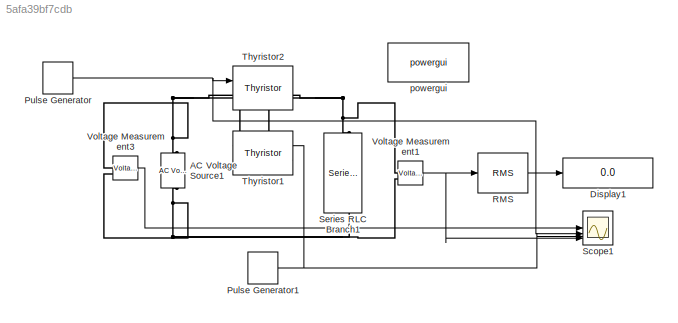
MODEL slx_5afa39bf7cdb
KIND model
CONFIG AbsTol = auto
CONFIG EnableMultiTasking = off
CONFIG FixedStep = auto
CONFIG MaxStep = 1e-4
CONFIG MinStep = auto
CONFIG RelTol = 1e-3
CONFIG SampleTimeConstraint = Unconstrained
CONFIG SolverName = VariableStepAuto
CONFIG StartTime = 0.0
CONFIG StopTime = 10.0
BLOCK [Reference] AC Voltage Source1  REF=spsACVoltageSourceLib/AC Voltage Source
  LibrarySourceBlock = sps_lib/Sources/AC Voltage Source
  SourceBlock = spsACVoltageSourceLib/AC Voltage Source
  SourceType = AC Voltage Source
BLOCK [Display] Display1
  Decimation = 1
BLOCK [DiscretePulseGenerator] Pulse Generator
  Period = 1/50
  PhaseDelay = alpha*(0.02/360)
  PulseType = Time based
  PulseWidth = 5
BLOCK [DiscretePulseGenerator] Pulse Generator1
  Period = 1/50
  PhaseDelay = (180+alpha)*(0.02/360)
  PulseType = Time based
  PulseWidth = 5
BLOCK [Reference] RMS  REF=spsRMSLib/RMS
  LibrarySourceBlock = sps_lib/Sensors and Measurements/RMS
  SourceBlock = spsRMSLib/RMS
  SourceType = RMS
BLOCK [Scope] Scope1
  Floating = off
  NumInputPorts = 4
  ScopeSpecificationString = Simulink.scopes.TimeScopeBlockCfg('CurrentConfiguration', extmgr.ConfigurationSet(extmgr.Configuration('Core','General UI',true,'FigureColor',[1 1 1]),extmgr.Configuration('Core','Source UI',true),extmgr.Configuration('Sources','WiredSimulink',true),extmgr.Configuration('Visuals','Time Domain',true,'TimeAxisLabels','All','SerializedDisplays',{struct('MinYLimReal','-406.57729','MaxYLimReal','406.57...<+4028ch>
BLOCK [Reference] Series RLC Branch1  REF=spsSeriesRLCBranchLib/Series RLC Branch
  LibrarySourceBlock = sps_lib/Passives/Series RLC Branch
  NameLocation = left
  SourceBlock = spsSeriesRLCBranchLib/Series RLC Branch
  SourceType = Series RLC Branch
BLOCK [Reference] Thyristor1  REF=spsThyristorLib/Thyristor
  LibrarySourceBlock = sps_lib/Power Electronics/Thyristor
  NameLocation = top
  SourceBlock = spsThyristorLib/Thyristor
  SourceType = Thyristor
BLOCK [Reference] Thyristor2  REF=spsThyristorLib/Thyristor
  LibrarySourceBlock = sps_lib/Power Electronics/Thyristor
  SourceBlock = spsThyristorLib/Thyristor
  SourceType = Thyristor
BLOCK [Reference] Voltage Measurement1  REF=spsVoltageMeasurementLib/Voltage Measurement
  LibrarySourceBlock = sps_lib/Sensors and Measurements/Voltage Measurement
  SourceBlock = spsVoltageMeasurementLib/Voltage Measurement
  SourceType = Voltage Measurement
  UserDataPersistent = on
BLOCK [Reference] Voltage Measurement3  REF=spsVoltageMeasurementLib/Voltage Measurement
  LibrarySourceBlock = sps_lib/Sensors and Measurements/Voltage Measurement
  SourceBlock = spsVoltageMeasurementLib/Voltage Measurement
  SourceType = Voltage Measurement
  UserDataPersistent = on
BLOCK [Reference] powergui  REF=sps_lib/powergui
  LibrarySourceBlock = sps_lib/powergui
  Priority = 1
  SourceBlock = sps_lib/powergui
  SourceType = PSB option menu block
NET Pulse Generator1:1 -> Scope1:3, Thyristor1:1
NET Pulse Generator:1 -> Scope1:2, Thyristor2:1
LINE RMS:1 -> Display1:1
NET Voltage Measurement1:1 -> RMS:1, Scope1:4
LINE Voltage Measurement3:1 -> Scope1:1
PNET net1: AC Voltage Source1:LConn1 -- Series RLC Branch1:RConn1 -- Voltage Measurement1:LConn2 -- Voltage Measurement3:LConn2
PNET net2: AC Voltage Source1:RConn1 -- Thyristor1:RConn1 -- Thyristor2:LConn1 -- Voltage Measurement3:LConn1
PNET net3: Series RLC Branch1:LConn1 -- Thyristor1:LConn1 -- Thyristor2:RConn1 -- Voltage Measurement1:LConn1
note: NET lines group one-source signal fan-out (src -> all destinations, sorted); 1:1 wires keep LINE; PNET lines group multi-terminal physical nets as a canonical sorted terminal list (undirected conserving connections); 2-terminal nets keep the pairwise PLINE form
